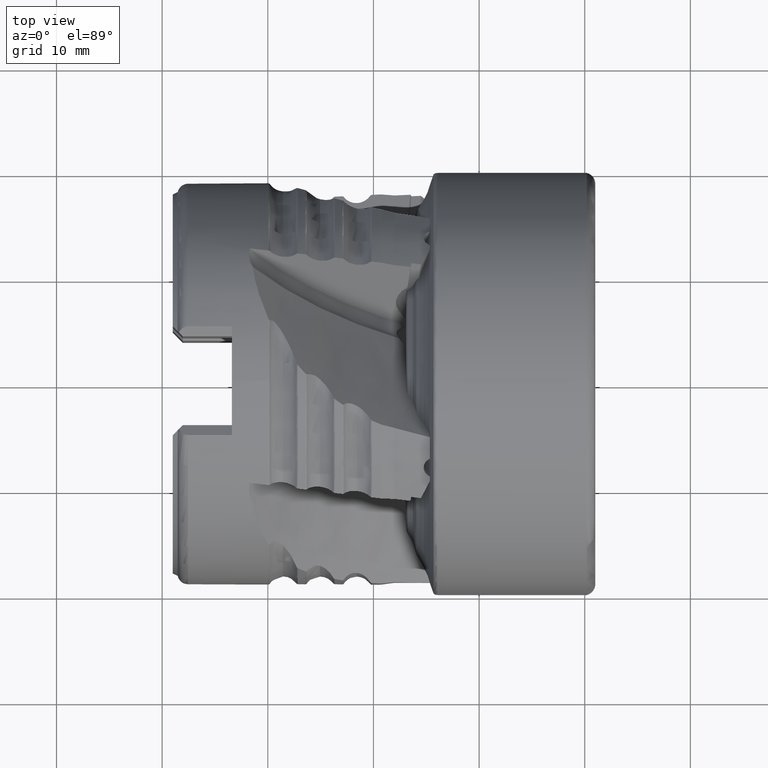
[diagram: clean part render]
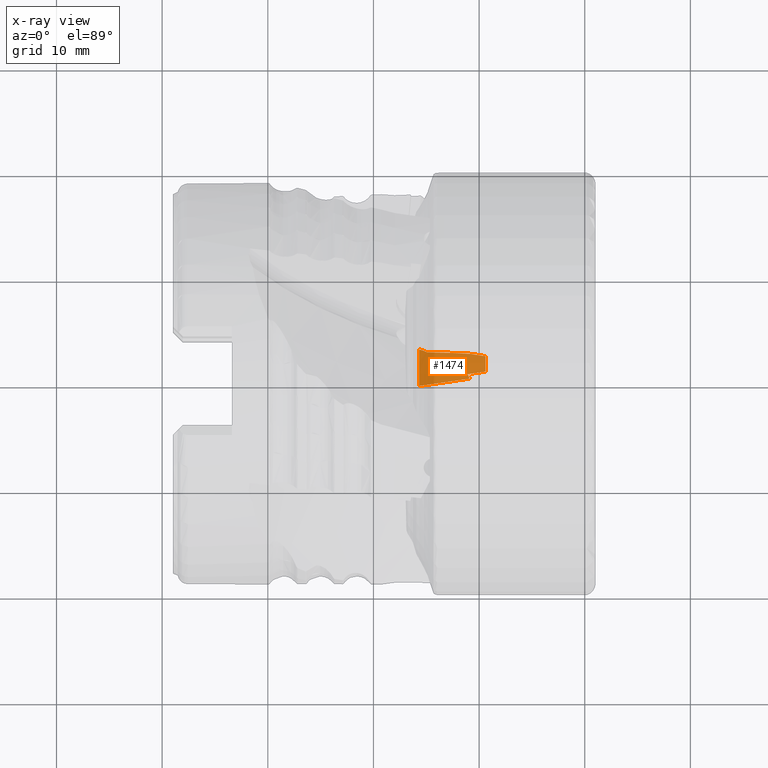
[diagram: x-ray — body ghosted, one internal face saturated and labeled with its STEP entity id]
A machine part, top view, then the same camera in x-ray: the body is ghosted and one INTERNAL B-rep face — a face not visible from any outside direction — is saturated and labeled: STEP entity #1474.
In plain terms, the highlighted conical surface has half-angle 10.901 deg.
Its self-contained STEP definition (entity closure, byte-faithful):
#495 = CONICAL_SURFACE ( 'NONE', #9234, 10.36530482169346534, 0.1902517933939480987 ) ;
#664 = VERTEX_POINT ( 'NONE', #5465 ) ;
#672 = ORIENTED_EDGE ( 'NONE', *, *, #8819, .F. ) ;
#693 = B_SPLINE_CURVE_WITH_KNOTS ( 'NONE', 3,
 ( #13414, #6099, #12088, #4996 ),
 .UNSPECIFIED., .F., .F.,
 ( 4, 4 ),
 ( 0.007828307529391639527, 0.008301606468678000492 ),
 .UNSPECIFIED. ) ;
#1297 = DIRECTION ( 'NONE',  ( -1.894898676716893122E-16, 1.000000000000000000, 0.0000000000000000000 ) ) ;
#1364 = EDGE_CURVE ( 'NONE', #13149, #14835, #2010, .T. ) ;
#1474 = ADVANCED_FACE ( 'NONE', ( #11166 ), #495, .F. ) ;
#1575 = CARTESIAN_POINT ( 'NONE',  ( -9.391755219216650019, 2.774858531757075308, -8.724032822409830246 ) ) ;
#2010 = CIRCLE ( 'NONE', #6256, 10.36530482169346534 ) ;
#2063 = CARTESIAN_POINT ( 'NONE',  ( -10.88991112337948941, 0.6588289781057498073, -9.420208949999999248 ) ) ;
#2442 = EDGE_CURVE ( 'NONE', #13149, #664, #11295, .T. ) ;
#3285 = DIRECTION ( 'NONE',  ( -1.000000000000000000, -1.226297045315739129E-16, 0.0000000000000000000 ) ) ;
#3397 = CIRCLE ( 'NONE', #12084, 9.154703084084653497 ) ;
#3835 = ORIENTED_EDGE ( 'NONE', *, *, #10736, .T. ) ;
#4092 = CARTESIAN_POINT ( 'NONE',  ( -9.391755219216650019, 1.323803467024488478, -9.058484030920572749 ) ) ;
#4289 = B_SPLINE_CURVE_WITH_KNOTS ( 'NONE', 3,
 ( #11230, #11283, #5325, #9013 ),
 .UNSPECIFIED., .F., .F.,
 ( 4, 4 ),
 ( 5.011869295886433207E-05, 0.0008412937856456740703 ),
 .UNSPECIFIED. ) ;
#4431 = CARTESIAN_POINT ( 'NONE',  ( -14.08045060805102011, 0.2104278957790735316, -10.05795178258435207 ) ) ;
#4996 = CARTESIAN_POINT ( 'NONE',  ( -10.88991112337948941, 0.6588289781057498073, -9.420208949999999248 ) ) ;
#5173 = VERTEX_POINT ( 'NONE', #4092 ) ;
#5325 = CARTESIAN_POINT ( 'NONE',  ( -15.16736492377012446, 3.292196546474431162, -9.725533240451165184 ) ) ;
#5465 = CARTESIAN_POINT ( 'NONE',  ( -10.88991112337948941, 0.6588289781057498073, -9.420208949999999248 ) ) ;
#5476 = CARTESIAN_POINT ( 'NONE',  ( -9.391755219216650019, 2.774858531757075308, -8.724032822409830246 ) ) ;
#5506 = ORIENTED_EDGE ( 'NONE', *, *, #15056, .F. ) ;
#5528 = VERTEX_POINT ( 'NONE', #11578 ) ;
#5588 = ORIENTED_EDGE ( 'NONE', *, *, #2442, .T. ) ;
#5714 = CARTESIAN_POINT ( 'NONE',  ( -12.46821130141415246, 3.092303930812023705, -9.243645289029837286 ) ) ;
#5875 = CARTESIAN_POINT ( 'NONE',  ( -15.67795172895628397, -2.751897017198602825E-15, 0.0000000000000000000 ) ) ;
#6048 = B_SPLINE_CURVE_WITH_KNOTS ( 'NONE', 3,
 ( #7959, #15103, #9172, #11581 ),
 .UNSPECIFIED., .F., .F.,
 ( 4, 4 ),
 ( 2.064920460068336254E-07, 0.001756393227261312823 ),
 .UNSPECIFIED. ) ;
#6099 = CARTESIAN_POINT ( 'NONE',  ( -11.01267198899924793, 0.9483855251823898325, -9.420208949999997472 ) ) ;
#6256 = AXIS2_PLACEMENT_3D ( 'NONE', #5875, #7084, #14308 ) ;
#6258 = B_SPLINE_CURVE_WITH_KNOTS ( 'NONE', 3,
 ( #1575, #10036, #7521, #11237, #7421, #9942 ),
 .UNSPECIFIED., .F., .F.,
 ( 4, 2, 4 ),
 ( 2.036691639965730187E-07, 0.001566581682775204480, 0.003132959696386412342 ),
 .UNSPECIFIED. ) ;
#6675 = VERTEX_POINT ( 'NONE', #8621 ) ;
#7084 = DIRECTION ( 'NONE',  ( 1.000000000000000000, 1.226297045315739129E-16, -0.0000000000000000000 ) ) ;
#7088 = CARTESIAN_POINT ( 'NONE',  ( -14.11161057692934406, 3.211644944090711995, -9.537940563154196028 ) ) ;
#7254 = DIRECTION ( 'NONE',  ( 1.000000000000000000, 1.226297045315739129E-16, -0.0000000000000000000 ) ) ;
#7421 = CARTESIAN_POINT ( 'NONE',  ( -11.95557815323422091, 3.084967847843342881, -9.141998357036520417 ) ) ;
#7521 = CARTESIAN_POINT ( 'NONE',  ( -10.41735292753708109, 2.958696347945316774, -8.871888308385999622 ) ) ;
#7959 = CARTESIAN_POINT ( 'NONE',  ( -9.391755219216650019, 1.323803467024488478, -9.058484030920572749 ) ) ;
#8014 = DIRECTION ( 'NONE',  ( 0.0000000000000000000, -1.000000000000000000, 0.0000000000000000000 ) ) ;
#8125 = CARTESIAN_POINT ( 'NONE',  ( -12.46821130141415246, 3.092303930812023705, -9.243645289029837286 ) ) ;
#8621 = CARTESIAN_POINT ( 'NONE',  ( -14.93310723571242882, 3.166654235392513339, -9.718989804176564107 ) ) ;
#8819 = EDGE_CURVE ( 'NONE', #14835, #6675, #4289, .T. ) ;
#9013 = CARTESIAN_POINT ( 'NONE',  ( -14.93310723571242882, 3.166654235392513339, -9.718989804176564107 ) ) ;
#9129 = EDGE_CURVE ( 'NONE', #5528, #664, #693, .T. ) ;
#9172 = CARTESIAN_POINT ( 'NONE',  ( -10.52603566466581420, 1.164390746434461832, -9.301002458468108358 ) ) ;
#9234 = AXIS2_PLACEMENT_3D ( 'NONE', #10373, #3285, #8014 ) ;
#9243 = CARTESIAN_POINT ( 'NONE',  ( -12.48429102827014958, 0.4347534954396961027, -9.743677524531666023 ) ) ;
#9679 = ORIENTED_EDGE ( 'NONE', *, *, #9129, .F. ) ;
#9942 = CARTESIAN_POINT ( 'NONE',  ( -12.46821130141415246, 3.092303930812023705, -9.243645289029837286 ) ) ;
#10036 = CARTESIAN_POINT ( 'NONE',  ( -9.904474986877234599, 2.885494003890122450, -8.792457390601024159 ) ) ;
#10275 = EDGE_CURVE ( 'NONE', #5173, #10528, #3397, .T. ) ;
#10373 = CARTESIAN_POINT ( 'NONE',  ( -15.67795172895628397, -2.751897017198602825E-15, 0.0000000000000000000 ) ) ;
#10528 = VERTEX_POINT ( 'NONE', #5476 ) ;
#10580 = EDGE_LOOP ( 'NONE', ( #5506, #15288, #10808, #3835, #672, #15486, #5588, #9679 ) ) ;
#10736 = EDGE_CURVE ( 'NONE', #11304, #6675, #12813, .T. ) ;
#10808 = ORIENTED_EDGE ( 'NONE', *, *, #14490, .T. ) ;
#11166 = FACE_OUTER_BOUND ( 'NONE', #10580, .T. ) ;
#11230 = CARTESIAN_POINT ( 'NONE',  ( -15.67795172895628397, 3.425198743570054383, -9.783023950377913280 ) ) ;
#11237 = CARTESIAN_POINT ( 'NONE',  ( -11.44289219934980295, 3.058804523344944126, -9.046608151960112920 ) ) ;
#11283 = CARTESIAN_POINT ( 'NONE',  ( -15.41811144475392581, 3.379626311682248918, -9.745960949213110069 ) ) ;
#11295 = B_SPLINE_CURVE_WITH_KNOTS ( 'NONE', 3,
 ( #11696, #4431, #9243, #2063 ),
 .UNSPECIFIED., .F., .F.,
 ( 4, 4 ),
 ( 2.055958735894359602E-07, 0.004926800348159302012 ),
 .UNSPECIFIED. ) ;
#11304 = VERTEX_POINT ( 'NONE', #5714 ) ;
#11578 = CARTESIAN_POINT ( 'NONE',  ( -11.09359136056636608, 1.084625995192502801, -9.420208949999997472 ) ) ;
#11581 = CARTESIAN_POINT ( 'NONE',  ( -11.09359136056636608, 1.084625995192502801, -9.420208949999997472 ) ) ;
#11696 = CARTESIAN_POINT ( 'NONE',  ( -15.67795172895628397, -0.01408624519095832972, -10.36529525022409537 ) ) ;
#12084 = AXIS2_PLACEMENT_3D ( 'NONE', #14436, #7254, #1297 ) ;
#12088 = CARTESIAN_POINT ( 'NONE',  ( -10.94358132220289015, 0.8069763426551499474, -9.420208949999997472 ) ) ;
#12813 = B_SPLINE_CURVE_WITH_KNOTS ( 'NONE', 3,
 ( #8125, #14313, #7088, #15467 ),
 .UNSPECIFIED., .F., .F.,
 ( 4, 4 ),
 ( 0.001661057265796662963, 0.004171460180163517016 ),
 .UNSPECIFIED. ) ;
#13018 = CARTESIAN_POINT ( 'NONE',  ( -15.67795172895628397, -0.01408624519095832972, -10.36529525022409537 ) ) ;
#13149 = VERTEX_POINT ( 'NONE', #13018 ) ;
#13414 = CARTESIAN_POINT ( 'NONE',  ( -11.09359136056636608, 1.084625995192502801, -9.420208949999997472 ) ) ;
#14308 = DIRECTION ( 'NONE',  ( 0.0000000000000000000, 1.000000000000000000, 0.0000000000000000000 ) ) ;
#14313 = CARTESIAN_POINT ( 'NONE',  ( -13.29007230020358854, 3.183392288467416176, -9.380069635323794230 ) ) ;
#14436 = CARTESIAN_POINT ( 'NONE',  ( -9.391755219216650019, -1.981022596581820257E-15, 0.0000000000000000000 ) ) ;
#14485 = CARTESIAN_POINT ( 'NONE',  ( -15.67795172895628397, 3.425198743570054383, -9.783023950377913280 ) ) ;
#14490 = EDGE_CURVE ( 'NONE', #10528, #11304, #6258, .T. ) ;
#14835 = VERTEX_POINT ( 'NONE', #14485 ) ;
#15056 = EDGE_CURVE ( 'NONE', #5173, #5528, #6048, .T. ) ;
#15103 = CARTESIAN_POINT ( 'NONE',  ( -9.958746176998390709, 1.244118084549133751, -9.180480715813590820 ) ) ;
#15288 = ORIENTED_EDGE ( 'NONE', *, *, #10275, .T. ) ;
#15467 = CARTESIAN_POINT ( 'NONE',  ( -14.93310723571242882, 3.166654235392513339, -9.718989804176564107 ) ) ;
#15486 = ORIENTED_EDGE ( 'NONE', *, *, #1364, .F. ) ;